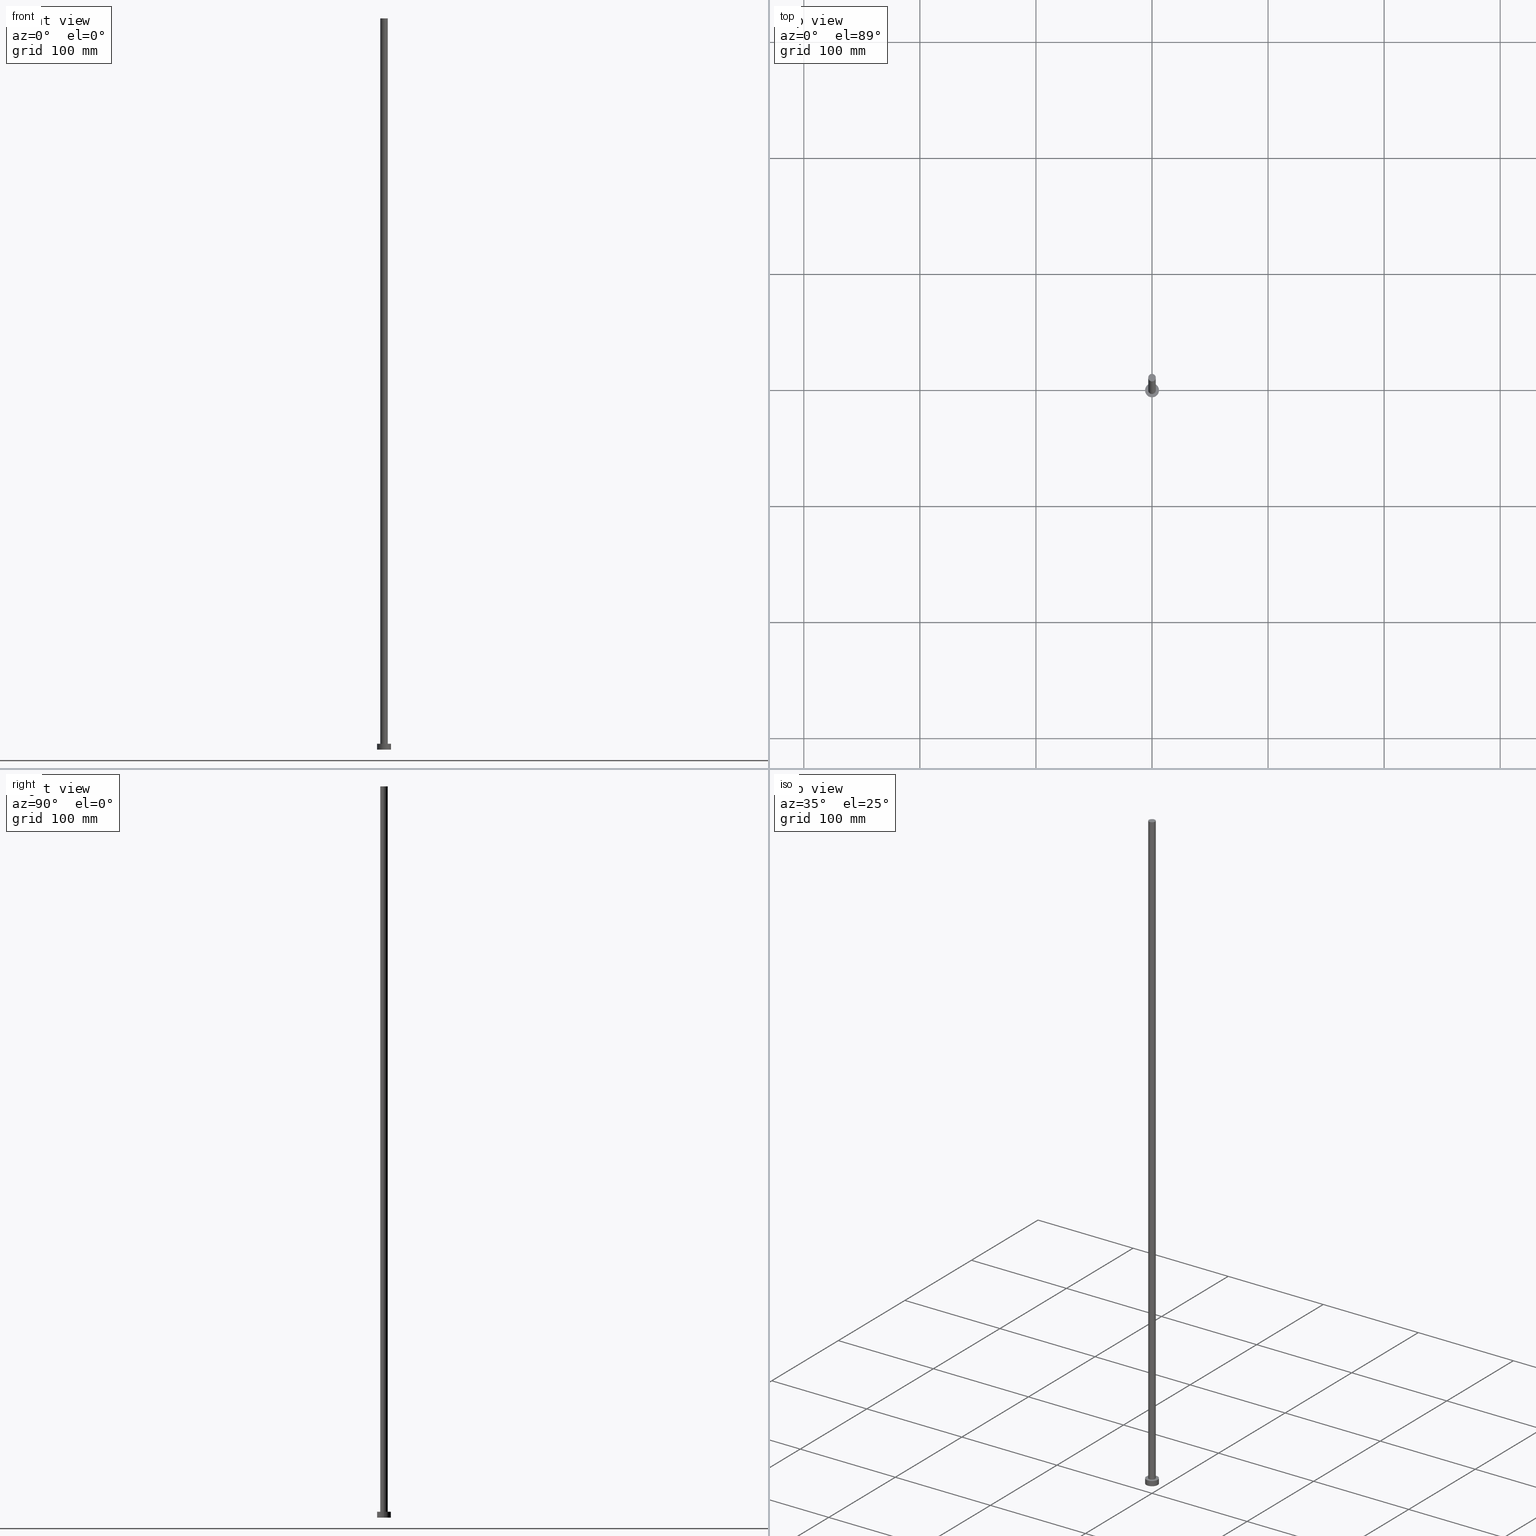
[diagram: canonical four-view strip — front | top / right | iso, engineering-drawing reading convention]
A machine part, canonical four-view strip (front | top / right | iso — engineering-drawing reading convention). The complete STEP part file that produces these views, byte-faithful:
ISO-10303-21;
HEADER;
FILE_DESCRIPTION (( 'STEP AP203' ),
    '1' );
FILE_NAME ('6b22.STEP',
    '2023-02-13T15:16:15',
    ( '' ),
    ( '' ),
    'SwSTEP 2.0',
    'SolidWorks 2019',
    '' );
FILE_SCHEMA (( 'CONFIG_CONTROL_DESIGN' ));
ENDSEC;

DATA;
#1 = DIRECTION ( 'NONE',  ( 0.000000000000000000, 0.000000000000000000, 1.000000000000000000 ) ) ;
#2 = EDGE_CURVE ( 'NONE', #45, #135, #230, .T. ) ;
#3 = DIRECTION ( 'NONE',  ( 1.000000000000000000, 0.000000000000000000, 0.000000000000000000 ) ) ;
#4 = AXIS2_PLACEMENT_3D ( 'NONE', #192, #174, #220 ) ;
#5 = CC_DESIGN_APPROVAL ( #169, ( #71 ) ) ;
#6 = FACE_OUTER_BOUND ( 'NONE', #31, .T. ) ;
#7 = EDGE_CURVE ( 'NONE', #195, #85, #254, .T. ) ;
#8 = EDGE_LOOP ( 'NONE', ( #201, #15, #57, #14 ) ) ;
#9 = CARTESIAN_POINT ( 'NONE',  ( 0.000000000000000000, 0.000000000000000000, 630.0000000000000000 ) ) ;
#10 = AXIS2_PLACEMENT_3D ( 'NONE', #87, #154, #138 ) ;
#11 = PLANE ( 'NONE',  #4 ) ;
#12 = DIRECTION ( 'NONE',  ( 0.000000000000000000, 0.000000000000000000, 1.000000000000000000 ) ) ;
#13 = CARTESIAN_POINT ( 'NONE',  ( 3.250000000000000444, 3.980102097228898231E-16, 630.0000000000000000 ) ) ;
#14 = ORIENTED_EDGE ( 'NONE', *, *, #50, .F. ) ;
#15 = ORIENTED_EDGE ( 'NONE', *, *, #155, .T. ) ;
#16 = DIRECTION ( 'NONE',  ( -1.000000000000000000, 0.000000000000000000, 0.000000000000000000 ) ) ;
#17 = APPLICATION_PROTOCOL_DEFINITION ( 'international standard', 'config_control_design', 1994, #131 ) ;
#18 = PERSON_AND_ORGANIZATION ( #165, #172 ) ;
#19 = DIRECTION ( 'NONE',  ( 1.000000000000000000, 0.000000000000000000, -0.000000000000000000 ) ) ;
#20 = APPROVAL_PERSON_ORGANIZATION ( #18, #117, #33 ) ;
#21 = DIRECTION ( 'NONE',  ( -0.000000000000000000, -0.000000000000000000, -1.000000000000000000 ) ) ;
#22 = CYLINDRICAL_SURFACE ( 'NONE', #216, 6.000000000000000888 ) ;
#23 = APPROVAL_ROLE ( '' ) ;
#24 = DIRECTION ( 'NONE',  ( -0.000000000000000000, -0.000000000000000000, -1.000000000000000000 ) ) ;
#25 = DIRECTION ( 'NONE',  ( -1.000000000000000000, 0.000000000000000000, 0.000000000000000000 ) ) ;
#26 = CC_DESIGN_DATE_AND_TIME_ASSIGNMENT ( #36, #186, ( #71 ) ) ;
#27 = CARTESIAN_POINT ( 'NONE',  ( -3.250000000000000444, 0.000000000000000000, 630.0000000000000000 ) ) ;
#28 = CARTESIAN_POINT ( 'NONE',  ( 0.000000000000000000, 0.000000000000000000, 0.000000000000000000 ) ) ;
#29 = ORIENTED_EDGE ( 'NONE', *, *, #145, .T. ) ;
#30 = DIRECTION ( 'NONE',  ( 1.000000000000000000, 0.000000000000000000, 0.000000000000000000 ) ) ;
#31 = EDGE_LOOP ( 'NONE', ( #177, #238, #119, #197 ) ) ;
#32 = DIRECTION ( 'NONE',  ( 0.000000000000000000, 0.000000000000000000, 1.000000000000000000 ) ) ;
#33 = APPROVAL_ROLE ( '' ) ;
#34 = CARTESIAN_POINT ( 'NONE',  ( 0.000000000000000000, 0.000000000000000000, 630.0000000000000000 ) ) ;
#35 = DIRECTION ( 'NONE',  ( 1.000000000000000000, 0.000000000000000000, 0.000000000000000000 ) ) ;
#36 = DATE_AND_TIME ( #205, #202 ) ;
#37 = CC_DESIGN_PERSON_AND_ORGANIZATION_ASSIGNMENT ( #233, #127, ( #218 ) ) ;
#38 = ADVANCED_FACE ( 'NONE', ( #160 ), #179, .T. ) ;
#39 = DATE_TIME_ROLE ( 'creation_date' ) ;
#40 = AXIS2_PLACEMENT_3D ( 'NONE', #9, #24, #25 ) ;
#41 = ORIENTED_EDGE ( 'NONE', *, *, #100, .T. ) ;
#42 = FACE_OUTER_BOUND ( 'NONE', #55, .T. ) ;
#43 = CIRCLE ( 'NONE', #51, 3.250000000000000444 ) ;
#44 = CARTESIAN_POINT ( 'NONE',  ( -6.000000000000000888, 0.000000000000000000, 5.000000000000000000 ) ) ;
#45 = VERTEX_POINT ( 'NONE', #69 ) ;
#46 = CARTESIAN_POINT ( 'NONE',  ( 0.000000000000000000, 0.000000000000000000, 0.000000000000000000 ) ) ;
#47 = CALENDAR_DATE ( 2023, 13, 2 ) ;
#48 = DIRECTION ( 'NONE',  ( 1.000000000000000000, 0.000000000000000000, 0.000000000000000000 ) ) ;
#49 = CC_DESIGN_PERSON_AND_ORGANIZATION_ASSIGNMENT ( #105, #141, ( #208 ) ) ;
#50 = EDGE_CURVE ( 'NONE', #221, #61, #234, .T. ) ;
#51 = AXIS2_PLACEMENT_3D ( 'NONE', #94, #1, #48 ) ;
#52 = APPROVAL_DATE_TIME ( #65, #117 ) ;
#53 = CALENDAR_DATE ( 2023, 13, 2 ) ;
#54 = ORIENTED_EDGE ( 'NONE', *, *, #161, .T. ) ;
#55 = EDGE_LOOP ( 'NONE', ( #29, #106 ) ) ;
#56 = EDGE_CURVE ( 'NONE', #175, #221, #249, .T. ) ;
#57 = ORIENTED_EDGE ( 'NONE', *, *, #115, .T. ) ;
#58 = FACE_OUTER_BOUND ( 'NONE', #214, .T. ) ;
#59 = ORIENTED_EDGE ( 'NONE', *, *, #62, .T. ) ;
#60 = CARTESIAN_POINT ( 'NONE',  ( 0.000000000000000000, 0.000000000000000000, 0.000000000000000000 ) ) ;
#61 = VERTEX_POINT ( 'NONE', #189 ) ;
#62 = EDGE_CURVE ( 'NONE', #85, #135, #171, .T. ) ;
#63 =( NAMED_UNIT ( * ) PLANE_ANGLE_UNIT ( ) SI_UNIT ( $, .RADIAN. ) );
#64 = DIRECTION ( 'NONE',  ( -1.000000000000000000, 0.000000000000000000, 0.000000000000000000 ) ) ;
#65 = DATE_AND_TIME ( #159, #149 ) ;
#66 = AXIS2_PLACEMENT_3D ( 'NONE', #34, #126, #64 ) ;
#67 = CC_DESIGN_PERSON_AND_ORGANIZATION_ASSIGNMENT ( #129, #187, ( #218 ) ) ;
#68 = APPROVAL_STATUS ( 'not_yet_approved' ) ;
#69 = CARTESIAN_POINT ( 'NONE',  ( -6.000000000000000888, 0.000000000000000000, 0.000000000000000000 ) ) ;
#70 = PERSON_AND_ORGANIZATION_ROLE ( 'creator' ) ;
#71 = SECURITY_CLASSIFICATION ( '', '', #183 ) ;
#72 = ADVANCED_BREP_SHAPE_REPRESENTATION ( '6b22', ( #147, #10 ), #188 ) ;
#73 = CALENDAR_DATE ( 2023, 13, 2 ) ;
#74 = DIRECTION ( 'NONE',  ( 0.000000000000000000, 0.000000000000000000, 1.000000000000000000 ) ) ;
#75 = LOCAL_TIME ( 16, 16, 15.00000000000000000, #181 ) ;
#76 = CARTESIAN_POINT ( 'NONE',  ( 0.000000000000000000, 0.000000000000000000, 5.000000000000000000 ) ) ;
#77 = CC_DESIGN_PERSON_AND_ORGANIZATION_ASSIGNMENT ( #226, #70, ( #152 ) ) ;
#78 = DIRECTION ( 'NONE',  ( 1.000000000000000000, 0.000000000000000000, 0.000000000000000000 ) ) ;
#79 = ORIENTED_EDGE ( 'NONE', *, *, #100, .F. ) ;
#80 = ORIENTED_EDGE ( 'NONE', *, *, #62, .F. ) ;
#81 = ADVANCED_FACE ( 'NONE', ( #6 ), #170, .T. ) ;
#82 = ORIENTED_EDGE ( 'NONE', *, *, #2, .T. ) ;
#83 = FACE_BOUND ( 'NONE', #109, .T. ) ;
#84 = APPROVAL ( #68, 'NEUR�EN�' ) ;
#85 = VERTEX_POINT ( 'NONE', #191 ) ;
#86 = CARTESIAN_POINT ( 'NONE',  ( 3.250000000000000444, 3.980102097228898231E-16, 5.000000000000000000 ) ) ;
#87 = CARTESIAN_POINT ( 'NONE',  ( 0.000000000000000000, 0.000000000000000000, 0.000000000000000000 ) ) ;
#88 = COORDINATED_UNIVERSAL_TIME_OFFSET ( 1, 0, .AHEAD. ) ;
#89 = LINE ( 'NONE', #227, #232 ) ;
#90 = AXIS2_PLACEMENT_3D ( 'NONE', #76, #148, #78 ) ;
#91 = DIRECTION ( 'NONE',  ( -0.000000000000000000, -0.000000000000000000, -1.000000000000000000 ) ) ;
#92 = FACE_OUTER_BOUND ( 'NONE', #104, .T. ) ;
#93 = APPROVAL_DATE_TIME ( #130, #169 ) ;
#94 = CARTESIAN_POINT ( 'NONE',  ( 0.000000000000000000, 0.000000000000000000, 630.0000000000000000 ) ) ;
#95 = COORDINATED_UNIVERSAL_TIME_OFFSET ( 1, 0, .AHEAD. ) ;
#96 = VECTOR ( 'NONE', #91, 1000.000000000000000 ) ;
#97 = PERSON_AND_ORGANIZATION ( #165, #172 ) ;
#98 = APPROVAL_PERSON_ORGANIZATION ( #114, #169, #23 ) ;
#99 = CARTESIAN_POINT ( 'NONE',  ( 6.000000000000000888, 7.347880794884120722E-16, 5.000000000000000000 ) ) ;
#100 = EDGE_CURVE ( 'NONE', #85, #195, #225, .T. ) ;
#101 = CIRCLE ( 'NONE', #90, 3.250000000000000444 ) ;
#102 = AXIS2_PLACEMENT_3D ( 'NONE', #241, #110, #30 ) ;
#103 = MECHANICAL_CONTEXT ( 'NONE', #123, 'mechanical' ) ;
#104 = EDGE_LOOP ( 'NONE', ( #80, #156, #54, #82 ) ) ;
#105 = PERSON_AND_ORGANIZATION ( #165, #172 ) ;
#106 = ORIENTED_EDGE ( 'NONE', *, *, #56, .T. ) ;
#107 = CYLINDRICAL_SURFACE ( 'NONE', #167, 6.000000000000000888 ) ;
#108 = DIRECTION ( 'NONE',  ( 1.000000000000000000, 0.000000000000000000, 0.000000000000000000 ) ) ;
#109 = EDGE_LOOP ( 'NONE', ( #213, #132 ) ) ;
#110 = DIRECTION ( 'NONE',  ( 0.000000000000000000, 0.000000000000000000, 1.000000000000000000 ) ) ;
#111 = CARTESIAN_POINT ( 'NONE',  ( -3.250000000000000444, 0.000000000000000000, 630.0000000000000000 ) ) ;
#112 = COORDINATED_UNIVERSAL_TIME_OFFSET ( 1, 0, .AHEAD. ) ;
#113 = LOCAL_TIME ( 16, 16, 15.00000000000000000, #95 ) ;
#114 = PERSON_AND_ORGANIZATION ( #165, #172 ) ;
#115 = EDGE_CURVE ( 'NONE', #133, #61, #101, .T. ) ;
#116 = CIRCLE ( 'NONE', #102, 3.250000000000000444 ) ;
#117 = APPROVAL ( #224, 'NEUR�EN�' ) ;
#118 = ADVANCED_FACE ( 'NONE', ( #136 ), #107, .T. ) ;
#119 = ORIENTED_EDGE ( 'NONE', *, *, #50, .T. ) ;
#120 = DIRECTION ( 'NONE',  ( 1.000000000000000000, 0.000000000000000000, -0.000000000000000000 ) ) ;
#121 = CC_DESIGN_DATE_AND_TIME_ASSIGNMENT ( #209, #39, ( #152 ) ) ;
#122 = ORIENTED_EDGE ( 'NONE', *, *, #7, .T. ) ;
#123 = APPLICATION_CONTEXT ( 'configuration controlled 3d designs of mechanical parts and assemblies' ) ;
#124 =( NAMED_UNIT ( * ) SI_UNIT ( $, .STERADIAN. ) SOLID_ANGLE_UNIT ( ) );
#125 = PERSON_AND_ORGANIZATION_ROLE ( 'classification_officer' ) ;
#126 = DIRECTION ( 'NONE',  ( -0.000000000000000000, -0.000000000000000000, -1.000000000000000000 ) ) ;
#127 = PERSON_AND_ORGANIZATION_ROLE ( 'design_supplier' ) ;
#128 = APPROVAL_DATE_TIME ( #251, #84 ) ;
#129 = PERSON_AND_ORGANIZATION ( #165, #172 ) ;
#130 = DATE_AND_TIME ( #73, #203 ) ;
#131 = APPLICATION_CONTEXT ( 'configuration controlled 3d designs of mechanical parts and assemblies' ) ;
#132 = ORIENTED_EDGE ( 'NONE', *, *, #115, .F. ) ;
#133 = VERTEX_POINT ( 'NONE', #86 ) ;
#134 = ADVANCED_FACE ( 'NONE', ( #157 ), #223, .F. ) ;
#135 = VERTEX_POINT ( 'NONE', #182 ) ;
#136 = FACE_OUTER_BOUND ( 'NONE', #240, .T. ) ;
#137 = DIRECTION ( 'NONE',  ( 0.000000000000000000, 0.000000000000000000, 1.000000000000000000 ) ) ;
#138 = DIRECTION ( 'NONE',  ( 1.000000000000000000, 0.000000000000000000, 0.000000000000000000 ) ) ;
#139 = VECTOR ( 'NONE', #228, 1000.000000000000000 ) ;
#140 = LINE ( 'NONE', #144, #96 ) ;
#141 = PERSON_AND_ORGANIZATION_ROLE ( 'design_owner' ) ;
#142 = AXIS2_PLACEMENT_3D ( 'NONE', #245, #137, #120 ) ;
#143 = CC_DESIGN_APPROVAL ( #84, ( #218 ) ) ;
#144 = CARTESIAN_POINT ( 'NONE',  ( 3.250000000000000444, 3.980102097228898231E-16, 630.0000000000000000 ) ) ;
#145 = EDGE_CURVE ( 'NONE', #221, #175, #43, .T. ) ;
#146 = APPROVAL_ROLE ( '' ) ;
#147 = MANIFOLD_SOLID_BREP ( 'P�idat vysunut�m3', #212 ) ;
#148 = DIRECTION ( 'NONE',  ( 0.000000000000000000, 0.000000000000000000, 1.000000000000000000 ) ) ;
#149 = LOCAL_TIME ( 16, 16, 15.00000000000000000, #88 ) ;
#150 = CARTESIAN_POINT ( 'NONE',  ( 0.000000000000000000, 0.000000000000000000, 5.000000000000000000 ) ) ;
#151 = EDGE_LOOP ( 'NONE', ( #153, #219 ) ) ;
#152 = PRODUCT_DEFINITION ( 'NEZN�M�', '', #218, #247 ) ;
#153 = ORIENTED_EDGE ( 'NONE', *, *, #2, .F. ) ;
#154 = DIRECTION ( 'NONE',  ( 0.000000000000000000, 0.000000000000000000, 1.000000000000000000 ) ) ;
#155 = EDGE_CURVE ( 'NONE', #175, #133, #140, .T. ) ;
#156 = ORIENTED_EDGE ( 'NONE', *, *, #7, .F. ) ;
#157 = FACE_OUTER_BOUND ( 'NONE', #151, .T. ) ;
#158 =( LENGTH_UNIT ( ) NAMED_UNIT ( * ) SI_UNIT ( .MILLI., .METRE. ) );
#159 = CALENDAR_DATE ( 2023, 13, 2 ) ;
#160 = FACE_OUTER_BOUND ( 'NONE', #8, .T. ) ;
#161 = EDGE_CURVE ( 'NONE', #195, #45, #89, .T. ) ;
#162 = CARTESIAN_POINT ( 'NONE',  ( 0.000000000000000000, 0.000000000000000000, 5.000000000000000000 ) ) ;
#163 = SHAPE_DEFINITION_REPRESENTATION ( #229, #72 ) ;
#164 = ADVANCED_FACE ( 'NONE', ( #92 ), #22, .T. ) ;
#165 = PERSON ( 'NEUR�EN�', 'NEUR�EN�', 'NEUR�EN�', ('NEUR�EN�'), ('NEUR�EN�'), ('NEUR�EN�') ) ;
#166 = COORDINATED_UNIVERSAL_TIME_OFFSET ( 1, 0, .AHEAD. ) ;
#167 = AXIS2_PLACEMENT_3D ( 'NONE', #248, #178, #16 ) ;
#168 = AXIS2_PLACEMENT_3D ( 'NONE', #46, #32, #19 ) ;
#169 = APPROVAL ( #185, 'NEUR�EN�' ) ;
#170 = CYLINDRICAL_SURFACE ( 'NONE', #40, 3.250000000000000444 ) ;
#171 = LINE ( 'NONE', #99, #193 ) ;
#172 = ORGANIZATION ( 'NEUR�EN�', 'NEUR�EN�', '' ) ;
#173 = APPROVAL_PERSON_ORGANIZATION ( #207, #84, #146 ) ;
#174 = DIRECTION ( 'NONE',  ( 0.000000000000000000, 0.000000000000000000, 1.000000000000000000 ) ) ;
#175 = VERTEX_POINT ( 'NONE', #13 ) ;
#176 = DIRECTION ( 'NONE',  ( 0.000000000000000000, 0.000000000000000000, 1.000000000000000000 ) ) ;
#177 = ORIENTED_EDGE ( 'NONE', *, *, #155, .F. ) ;
#178 = DIRECTION ( 'NONE',  ( -0.000000000000000000, -0.000000000000000000, -1.000000000000000000 ) ) ;
#179 = CYLINDRICAL_SURFACE ( 'NONE', #66, 3.250000000000000444 ) ;
#180 = DIRECTION ( 'NONE',  ( 0.000000000000000000, 0.000000000000000000, 1.000000000000000000 ) ) ;
#181 = COORDINATED_UNIVERSAL_TIME_OFFSET ( 1, 0, .AHEAD. ) ;
#182 = CARTESIAN_POINT ( 'NONE',  ( 6.000000000000000888, 7.347880794884120722E-16, 0.000000000000000000 ) ) ;
#183 = SECURITY_CLASSIFICATION_LEVEL ( 'unclassified' ) ;
#184 = CC_DESIGN_APPROVAL ( #117, ( #152 ) ) ;
#185 = APPROVAL_STATUS ( 'not_yet_approved' ) ;
#186 = DATE_TIME_ROLE ( 'classification_date' ) ;
#187 = PERSON_AND_ORGANIZATION_ROLE ( 'creator' ) ;
#188 =( GEOMETRIC_REPRESENTATION_CONTEXT ( 3 ) GLOBAL_UNCERTAINTY_ASSIGNED_CONTEXT ( ( #222 ) ) GLOBAL_UNIT_ASSIGNED_CONTEXT ( ( #158, #63, #124 ) ) REPRESENTATION_CONTEXT ( 'NONE', 'WORKASPACE' ) );
#189 = CARTESIAN_POINT ( 'NONE',  ( -3.250000000000000444, 0.000000000000000000, 5.000000000000000000 ) ) ;
#190 = AXIS2_PLACEMENT_3D ( 'NONE', #244, #255, #252 ) ;
#191 = CARTESIAN_POINT ( 'NONE',  ( 6.000000000000000888, 7.347880794884120722E-16, 5.000000000000000000 ) ) ;
#192 = CARTESIAN_POINT ( 'NONE',  ( 0.000000000000000000, 0.000000000000000000, 5.000000000000000000 ) ) ;
#193 = VECTOR ( 'NONE', #235, 1000.000000000000000 ) ;
#194 = ADVANCED_FACE ( 'NONE', ( #42 ), #199, .T. ) ;
#195 = VERTEX_POINT ( 'NONE', #44 ) ;
#196 = PRODUCT_RELATED_PRODUCT_CATEGORY ( 'detail', '', ( #208 ) ) ;
#197 = ORIENTED_EDGE ( 'NONE', *, *, #198, .T. ) ;
#198 = EDGE_CURVE ( 'NONE', #61, #133, #116, .T. ) ;
#199 = PLANE ( 'NONE',  #142 ) ;
#200 = AXIS2_PLACEMENT_3D ( 'NONE', #28, #12, #242 ) ;
#201 = ORIENTED_EDGE ( 'NONE', *, *, #56, .F. ) ;
#202 = LOCAL_TIME ( 16, 16, 15.00000000000000000, #112 ) ;
#203 = LOCAL_TIME ( 16, 16, 15.00000000000000000, #166 ) ;
#204 = CARTESIAN_POINT ( 'NONE',  ( 0.000000000000000000, 0.000000000000000000, 630.0000000000000000 ) ) ;
#205 = CALENDAR_DATE ( 2023, 13, 2 ) ;
#206 = EDGE_CURVE ( 'NONE', #135, #45, #250, .T. ) ;
#207 = PERSON_AND_ORGANIZATION ( #165, #172 ) ;
#208 = PRODUCT ( '6b22', '6b22', '', ( #103 ) ) ;
#209 = DATE_AND_TIME ( #53, #75 ) ;
#210 = ADVANCED_FACE ( 'NONE', ( #83, #58 ), #11, .T. ) ;
#211 = AXIS2_PLACEMENT_3D ( 'NONE', #150, #74, #3 ) ;
#212 = CLOSED_SHELL ( 'NONE', ( #38, #118, #164, #210, #134, #81, #194 ) ) ;
#213 = ORIENTED_EDGE ( 'NONE', *, *, #198, .F. ) ;
#214 = EDGE_LOOP ( 'NONE', ( #122, #41 ) ) ;
#215 = ORIENTED_EDGE ( 'NONE', *, *, #206, .T. ) ;
#216 = AXIS2_PLACEMENT_3D ( 'NONE', #162, #253, #231 ) ;
#217 = APPLICATION_PROTOCOL_DEFINITION ( 'international standard', 'config_control_design', 1994, #123 ) ;
#218 = PRODUCT_DEFINITION_FORMATION_WITH_SPECIFIED_SOURCE ( 'LIBOVOLN�', '', #208, .NOT_KNOWN. ) ;
#219 = ORIENTED_EDGE ( 'NONE', *, *, #206, .F. ) ;
#220 = DIRECTION ( 'NONE',  ( 1.000000000000000000, 0.000000000000000000, -0.000000000000000000 ) ) ;
#221 = VERTEX_POINT ( 'NONE', #27 ) ;
#222 = UNCERTAINTY_MEASURE_WITH_UNIT (LENGTH_MEASURE( 1.000000000000000082E-05 ), #158, 'distance_accuracy_value', 'NONE');
#223 = PLANE ( 'NONE',  #168 ) ;
#224 = APPROVAL_STATUS ( 'not_yet_approved' ) ;
#225 = CIRCLE ( 'NONE', #211, 6.000000000000000888 ) ;
#226 = PERSON_AND_ORGANIZATION ( #165, #172 ) ;
#227 = CARTESIAN_POINT ( 'NONE',  ( -6.000000000000000888, 0.000000000000000000, 5.000000000000000000 ) ) ;
#228 = DIRECTION ( 'NONE',  ( -0.000000000000000000, -0.000000000000000000, -1.000000000000000000 ) ) ;
#229 = PRODUCT_DEFINITION_SHAPE ( 'NONE', 'NONE',  #152 ) ;
#230 = CIRCLE ( 'NONE', #200, 6.000000000000000888 ) ;
#231 = DIRECTION ( 'NONE',  ( -1.000000000000000000, 0.000000000000000000, 0.000000000000000000 ) ) ;
#232 = VECTOR ( 'NONE', #21, 1000.000000000000000 ) ;
#233 = PERSON_AND_ORGANIZATION ( #165, #172 ) ;
#234 = LINE ( 'NONE', #111, #139 ) ;
#235 = DIRECTION ( 'NONE',  ( -0.000000000000000000, -0.000000000000000000, -1.000000000000000000 ) ) ;
#236 = AXIS2_PLACEMENT_3D ( 'NONE', #204, #180, #35 ) ;
#237 = AXIS2_PLACEMENT_3D ( 'NONE', #60, #176, #108 ) ;
#238 = ORIENTED_EDGE ( 'NONE', *, *, #145, .F. ) ;
#239 = CC_DESIGN_SECURITY_CLASSIFICATION ( #71, ( #218 ) ) ;
#240 = EDGE_LOOP ( 'NONE', ( #79, #59, #215, #246 ) ) ;
#241 = CARTESIAN_POINT ( 'NONE',  ( 0.000000000000000000, 0.000000000000000000, 5.000000000000000000 ) ) ;
#242 = DIRECTION ( 'NONE',  ( 1.000000000000000000, 0.000000000000000000, 0.000000000000000000 ) ) ;
#243 = CC_DESIGN_PERSON_AND_ORGANIZATION_ASSIGNMENT ( #97, #125, ( #71 ) ) ;
#244 = CARTESIAN_POINT ( 'NONE',  ( 0.000000000000000000, 0.000000000000000000, 5.000000000000000000 ) ) ;
#245 = CARTESIAN_POINT ( 'NONE',  ( 0.000000000000000000, 0.000000000000000000, 630.0000000000000000 ) ) ;
#246 = ORIENTED_EDGE ( 'NONE', *, *, #161, .F. ) ;
#247 = DESIGN_CONTEXT ( 'detailed design', #131, 'design' ) ;
#248 = CARTESIAN_POINT ( 'NONE',  ( 0.000000000000000000, 0.000000000000000000, 5.000000000000000000 ) ) ;
#249 = CIRCLE ( 'NONE', #236, 3.250000000000000444 ) ;
#250 = CIRCLE ( 'NONE', #237, 6.000000000000000888 ) ;
#251 = DATE_AND_TIME ( #47, #113 ) ;
#252 = DIRECTION ( 'NONE',  ( 1.000000000000000000, 0.000000000000000000, 0.000000000000000000 ) ) ;
#253 = DIRECTION ( 'NONE',  ( -0.000000000000000000, -0.000000000000000000, -1.000000000000000000 ) ) ;
#254 = CIRCLE ( 'NONE', #190, 6.000000000000000888 ) ;
#255 = DIRECTION ( 'NONE',  ( 0.000000000000000000, 0.000000000000000000, 1.000000000000000000 ) ) ;
ENDSEC;
END-ISO-10303-21;
